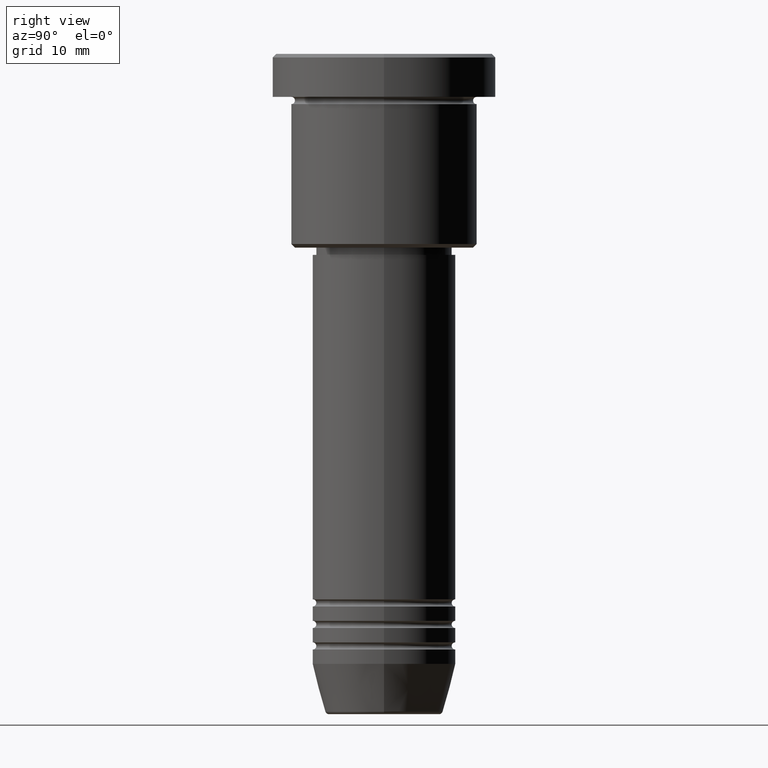
[diagram: clean part render]
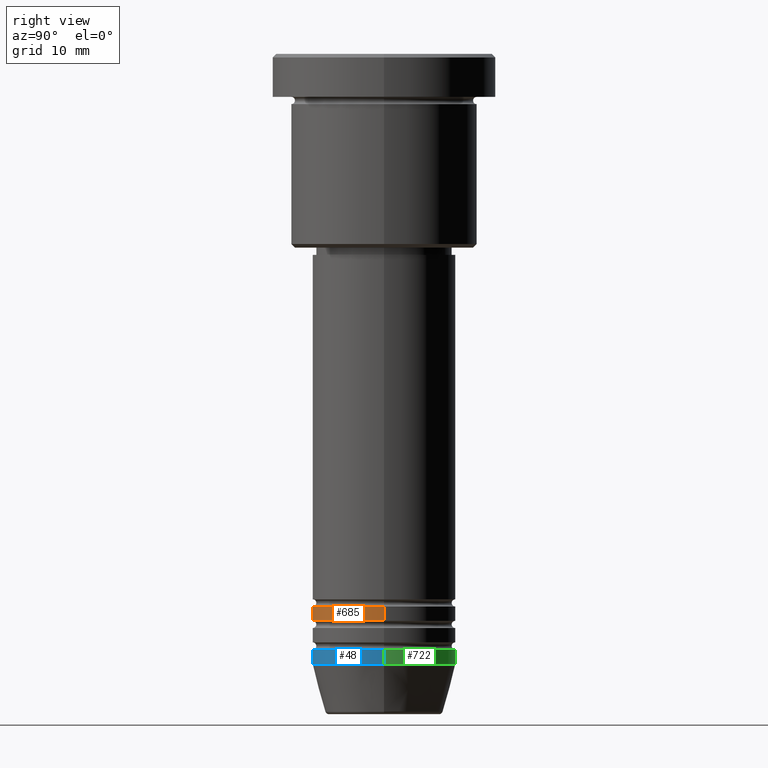
[diagram: same view with three faces highlighted in distinct colors, each labeled with its STEP entity id]
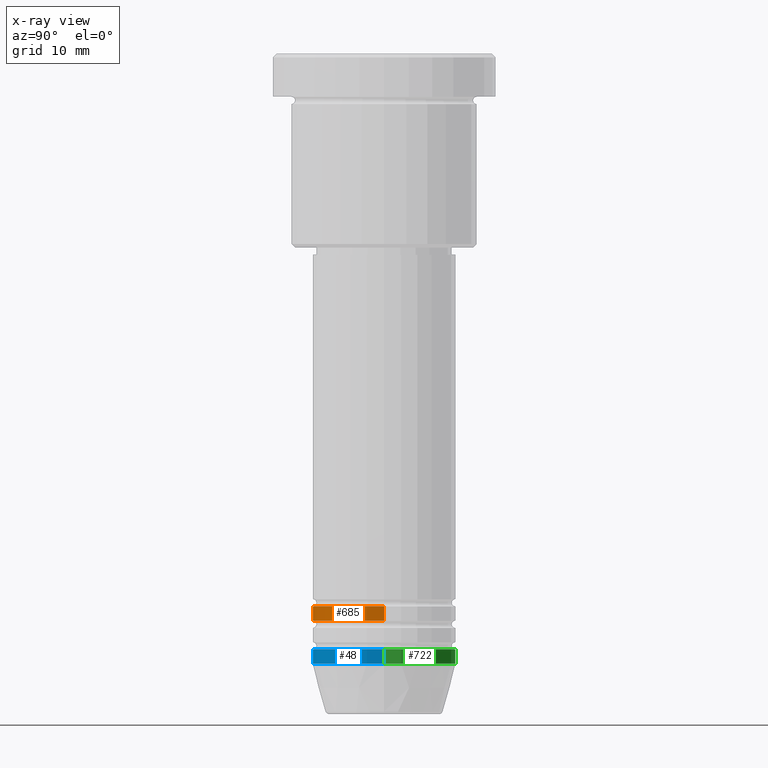
[diagram: x-ray of the same camera — body ghosted, the three highlighted faces saturated]
A machine part, right view with three faces highlighted in distinct colors.
The next image is the same camera in x-ray (body ghosted, the three faces saturated) — at least one of them is partly hidden behind the body in this view.
Their STEP definitions:

[orange] entity #685 — the highlighted cylindrical surface (partial cylindrical patch) has radius 10 mm, axis along (-0, -0, 1).
#15 = ORIENTED_EDGE ( 'NONE', *, *, #1145, .T. ) ;
#36 = CARTESIAN_POINT ( 'NONE',  ( 0.000000000000000000, 0.000000000000000000, -76.99999999999997158 ) ) ;
#40 = CARTESIAN_POINT ( 'NONE',  ( 10.00000000000000000, 0.000000000000000000, -76.99999999999997158 ) ) ;
#57 = VERTEX_POINT ( 'NONE', #1091 ) ;
#120 = CARTESIAN_POINT ( 'NONE',  ( 0.000000000000000000, 0.000000000000000000, 0.000000000000000000 ) ) ;
#160 = CARTESIAN_POINT ( 'NONE',  ( 10.00000000000000000, 0.000000000000000000, 0.000000000000000000 ) ) ;
#169 = LINE ( 'NONE', #160, #627 ) ;
#214 = CYLINDRICAL_SURFACE ( 'NONE', #307, 10.00000000000000000 ) ;
#227 = DIRECTION ( 'NONE',  ( -0.000000000000000000, -0.000000000000000000, 1.000000000000000000 ) ) ;
#307 = AXIS2_PLACEMENT_3D ( 'NONE', #120, #486, #848 ) ;
#332 = FACE_OUTER_BOUND ( 'NONE', #789, .T. ) ;
#342 = CIRCLE ( 'NONE', #696, 10.00000000000000000 ) ;
#356 = CARTESIAN_POINT ( 'NONE',  ( -10.00000000000000000, 1.224646799147353256E-15, 0.000000000000000000 ) ) ;
#417 = ORIENTED_EDGE ( 'NONE', *, *, #989, .T. ) ;
#431 = VERTEX_POINT ( 'NONE', #922 ) ;
#460 = DIRECTION ( 'NONE',  ( 1.000000000000000000, 0.000000000000000000, 0.000000000000000000 ) ) ;
#473 = AXIS2_PLACEMENT_3D ( 'NONE', #36, #227, #1120 ) ;
#486 = DIRECTION ( 'NONE',  ( -0.000000000000000000, -0.000000000000000000, 1.000000000000000000 ) ) ;
#496 = ORIENTED_EDGE ( 'NONE', *, *, #564, .F. ) ;
#541 = ORIENTED_EDGE ( 'NONE', *, *, #939, .F. ) ;
#564 = EDGE_CURVE ( 'NONE', #431, #1012, #1150, .T. ) ;
#627 = VECTOR ( 'NONE', #888, 1000.000000000000000 ) ;
#679 = VECTOR ( 'NONE', #1176, 1000.000000000000000 ) ;
#685 = ADVANCED_FACE ( 'NONE', ( #332 ), #214, .T. ) ;
#696 = AXIS2_PLACEMENT_3D ( 'NONE', #1163, #710, #460 ) ;
#710 = DIRECTION ( 'NONE',  ( -0.000000000000000000, -0.000000000000000000, 1.000000000000000000 ) ) ;
#789 = EDGE_LOOP ( 'NONE', ( #541, #417, #15, #496 ) ) ;
#848 = DIRECTION ( 'NONE',  ( 1.000000000000000000, 0.000000000000000000, 0.000000000000000000 ) ) ;
#888 = DIRECTION ( 'NONE',  ( -0.000000000000000000, -0.000000000000000000, 1.000000000000000000 ) ) ;
#904 = CARTESIAN_POINT ( 'NONE',  ( 10.00000000000000000, 0.000000000000000000, -78.99999999999997158 ) ) ;
#919 = VERTEX_POINT ( 'NONE', #904 ) ;
#922 = CARTESIAN_POINT ( 'NONE',  ( -10.00000000000000000, 1.224646799147353256E-15, -76.99999999999997158 ) ) ;
#939 = EDGE_CURVE ( 'NONE', #57, #431, #1094, .T. ) ;
#989 = EDGE_CURVE ( 'NONE', #57, #919, #342, .T. ) ;
#1012 = VERTEX_POINT ( 'NONE', #40 ) ;
#1091 = CARTESIAN_POINT ( 'NONE',  ( -10.00000000000000000, 1.224646799147353256E-15, -78.99999999999997158 ) ) ;
#1094 = LINE ( 'NONE', #356, #679 ) ;
#1120 = DIRECTION ( 'NONE',  ( 1.000000000000000000, 0.000000000000000000, 0.000000000000000000 ) ) ;
#1145 = EDGE_CURVE ( 'NONE', #919, #1012, #169, .T. ) ;
#1150 = CIRCLE ( 'NONE', #473, 10.00000000000000000 ) ;
#1163 = CARTESIAN_POINT ( 'NONE',  ( 0.000000000000000000, 0.000000000000000000, -78.99999999999997158 ) ) ;
#1176 = DIRECTION ( 'NONE',  ( -0.000000000000000000, -0.000000000000000000, 1.000000000000000000 ) ) ;

[blue] entity #48 — the highlighted cylindrical surface (partial cylindrical patch) has radius 10 mm, axis along (-0, -0, 1).
#5 = VECTOR ( 'NONE', #620, 1000.000000000000000 ) ;
#48 = ADVANCED_FACE ( 'NONE', ( #527 ), #80, .T. ) ;
#59 = CARTESIAN_POINT ( 'NONE',  ( 0.000000000000000000, 0.000000000000000000, -84.99999999999998579 ) ) ;
#68 = AXIS2_PLACEMENT_3D ( 'NONE', #275, #650, #1086 ) ;
#78 = DIRECTION ( 'NONE',  ( 1.000000000000000000, 0.000000000000000000, 0.000000000000000000 ) ) ;
#80 = CYLINDRICAL_SURFACE ( 'NONE', #68, 10.00000000000000000 ) ;
#179 = CARTESIAN_POINT ( 'NONE',  ( -10.00000000000000000, 1.224646799147353256E-15, -82.99999999999998579 ) ) ;
#186 = DIRECTION ( 'NONE',  ( -0.000000000000000000, -0.000000000000000000, 1.000000000000000000 ) ) ;
#216 = ORIENTED_EDGE ( 'NONE', *, *, #899, .F. ) ;
#224 = VERTEX_POINT ( 'NONE', #446 ) ;
#226 = EDGE_CURVE ( 'NONE', #529, #1005, #703, .T. ) ;
#269 = AXIS2_PLACEMENT_3D ( 'NONE', #59, #897, #78 ) ;
#274 = ORIENTED_EDGE ( 'NONE', *, *, #226, .F. ) ;
#275 = CARTESIAN_POINT ( 'NONE',  ( 0.000000000000000000, 0.000000000000000000, 0.000000000000000000 ) ) ;
#282 = EDGE_CURVE ( 'NONE', #529, #372, #781, .T. ) ;
#328 = ORIENTED_EDGE ( 'NONE', *, *, #1006, .T. ) ;
#335 = ORIENTED_EDGE ( 'NONE', *, *, #282, .T. ) ;
#372 = VERTEX_POINT ( 'NONE', #1010 ) ;
#446 = CARTESIAN_POINT ( 'NONE',  ( 10.00000000000000000, 0.000000000000000000, -82.99999999999998579 ) ) ;
#493 = CIRCLE ( 'NONE', #643, 10.00000000000000000 ) ;
#527 = FACE_OUTER_BOUND ( 'NONE', #1142, .T. ) ;
#529 = VERTEX_POINT ( 'NONE', #673 ) ;
#532 = VECTOR ( 'NONE', #186, 1000.000000000000000 ) ;
#542 = DIRECTION ( 'NONE',  ( -0.000000000000000000, -0.000000000000000000, 1.000000000000000000 ) ) ;
#547 = CARTESIAN_POINT ( 'NONE',  ( 0.000000000000000000, 0.000000000000000000, -82.99999999999998579 ) ) ;
#620 = DIRECTION ( 'NONE',  ( -0.000000000000000000, -0.000000000000000000, 1.000000000000000000 ) ) ;
#632 = DIRECTION ( 'NONE',  ( 1.000000000000000000, 0.000000000000000000, 0.000000000000000000 ) ) ;
#643 = AXIS2_PLACEMENT_3D ( 'NONE', #547, #542, #632 ) ;
#650 = DIRECTION ( 'NONE',  ( -0.000000000000000000, -0.000000000000000000, 1.000000000000000000 ) ) ;
#673 = CARTESIAN_POINT ( 'NONE',  ( -10.00000000000000000, 1.224646799147353256E-15, -84.99999999999998579 ) ) ;
#703 = LINE ( 'NONE', #1062, #5 ) ;
#718 = LINE ( 'NONE', #803, #532 ) ;
#781 = CIRCLE ( 'NONE', #269, 10.00000000000000000 ) ;
#803 = CARTESIAN_POINT ( 'NONE',  ( 10.00000000000000000, 0.000000000000000000, 0.000000000000000000 ) ) ;
#897 = DIRECTION ( 'NONE',  ( -0.000000000000000000, -0.000000000000000000, 1.000000000000000000 ) ) ;
#899 = EDGE_CURVE ( 'NONE', #1005, #224, #493, .T. ) ;
#1005 = VERTEX_POINT ( 'NONE', #179 ) ;
#1006 = EDGE_CURVE ( 'NONE', #372, #224, #718, .T. ) ;
#1010 = CARTESIAN_POINT ( 'NONE',  ( 10.00000000000000000, 0.000000000000000000, -84.99999999999998579 ) ) ;
#1062 = CARTESIAN_POINT ( 'NONE',  ( -10.00000000000000000, 1.224646799147353256E-15, 0.000000000000000000 ) ) ;
#1086 = DIRECTION ( 'NONE',  ( 1.000000000000000000, 0.000000000000000000, 0.000000000000000000 ) ) ;
#1142 = EDGE_LOOP ( 'NONE', ( #274, #335, #328, #216 ) ) ;

[green] entity #722 — the highlighted cylindrical surface (partial cylindrical patch) has radius 10 mm, axis along (-0, -0, 1).
#5 = VECTOR ( 'NONE', #620, 1000.000000000000000 ) ;
#137 = DIRECTION ( 'NONE',  ( -0.000000000000000000, -0.000000000000000000, 1.000000000000000000 ) ) ;
#179 = CARTESIAN_POINT ( 'NONE',  ( -10.00000000000000000, 1.224646799147353256E-15, -82.99999999999998579 ) ) ;
#186 = DIRECTION ( 'NONE',  ( -0.000000000000000000, -0.000000000000000000, 1.000000000000000000 ) ) ;
#191 = AXIS2_PLACEMENT_3D ( 'NONE', #347, #352, #971 ) ;
#224 = VERTEX_POINT ( 'NONE', #446 ) ;
#226 = EDGE_CURVE ( 'NONE', #529, #1005, #703, .T. ) ;
#278 = ORIENTED_EDGE ( 'NONE', *, *, #528, .F. ) ;
#347 = CARTESIAN_POINT ( 'NONE',  ( 0.000000000000000000, 0.000000000000000000, 0.000000000000000000 ) ) ;
#349 = ORIENTED_EDGE ( 'NONE', *, *, #595, .T. ) ;
#352 = DIRECTION ( 'NONE',  ( -0.000000000000000000, -0.000000000000000000, 1.000000000000000000 ) ) ;
#372 = VERTEX_POINT ( 'NONE', #1010 ) ;
#446 = CARTESIAN_POINT ( 'NONE',  ( 10.00000000000000000, 0.000000000000000000, -82.99999999999998579 ) ) ;
#524 = FACE_OUTER_BOUND ( 'NONE', #974, .T. ) ;
#528 = EDGE_CURVE ( 'NONE', #224, #1005, #998, .T. ) ;
#529 = VERTEX_POINT ( 'NONE', #673 ) ;
#532 = VECTOR ( 'NONE', #186, 1000.000000000000000 ) ;
#584 = CIRCLE ( 'NONE', #835, 10.00000000000000000 ) ;
#592 = ORIENTED_EDGE ( 'NONE', *, *, #1006, .F. ) ;
#595 = EDGE_CURVE ( 'NONE', #372, #529, #584, .T. ) ;
#608 = CYLINDRICAL_SURFACE ( 'NONE', #191, 10.00000000000000000 ) ;
#620 = DIRECTION ( 'NONE',  ( -0.000000000000000000, -0.000000000000000000, 1.000000000000000000 ) ) ;
#621 = ORIENTED_EDGE ( 'NONE', *, *, #226, .T. ) ;
#669 = DIRECTION ( 'NONE',  ( 1.000000000000000000, 0.000000000000000000, 0.000000000000000000 ) ) ;
#673 = CARTESIAN_POINT ( 'NONE',  ( -10.00000000000000000, 1.224646799147353256E-15, -84.99999999999998579 ) ) ;
#678 = AXIS2_PLACEMENT_3D ( 'NONE', #818, #137, #669 ) ;
#703 = LINE ( 'NONE', #1062, #5 ) ;
#718 = LINE ( 'NONE', #803, #532 ) ;
#722 = ADVANCED_FACE ( 'NONE', ( #524 ), #608, .T. ) ;
#784 = DIRECTION ( 'NONE',  ( 1.000000000000000000, 0.000000000000000000, 0.000000000000000000 ) ) ;
#803 = CARTESIAN_POINT ( 'NONE',  ( 10.00000000000000000, 0.000000000000000000, 0.000000000000000000 ) ) ;
#818 = CARTESIAN_POINT ( 'NONE',  ( 0.000000000000000000, 0.000000000000000000, -82.99999999999998579 ) ) ;
#835 = AXIS2_PLACEMENT_3D ( 'NONE', #871, #940, #784 ) ;
#871 = CARTESIAN_POINT ( 'NONE',  ( 0.000000000000000000, 0.000000000000000000, -84.99999999999998579 ) ) ;
#940 = DIRECTION ( 'NONE',  ( -0.000000000000000000, -0.000000000000000000, 1.000000000000000000 ) ) ;
#971 = DIRECTION ( 'NONE',  ( 1.000000000000000000, 0.000000000000000000, 0.000000000000000000 ) ) ;
#974 = EDGE_LOOP ( 'NONE', ( #349, #621, #278, #592 ) ) ;
#998 = CIRCLE ( 'NONE', #678, 10.00000000000000000 ) ;
#1005 = VERTEX_POINT ( 'NONE', #179 ) ;
#1006 = EDGE_CURVE ( 'NONE', #372, #224, #718, .T. ) ;
#1010 = CARTESIAN_POINT ( 'NONE',  ( 10.00000000000000000, 0.000000000000000000, -84.99999999999998579 ) ) ;
#1062 = CARTESIAN_POINT ( 'NONE',  ( -10.00000000000000000, 1.224646799147353256E-15, 0.000000000000000000 ) ) ;